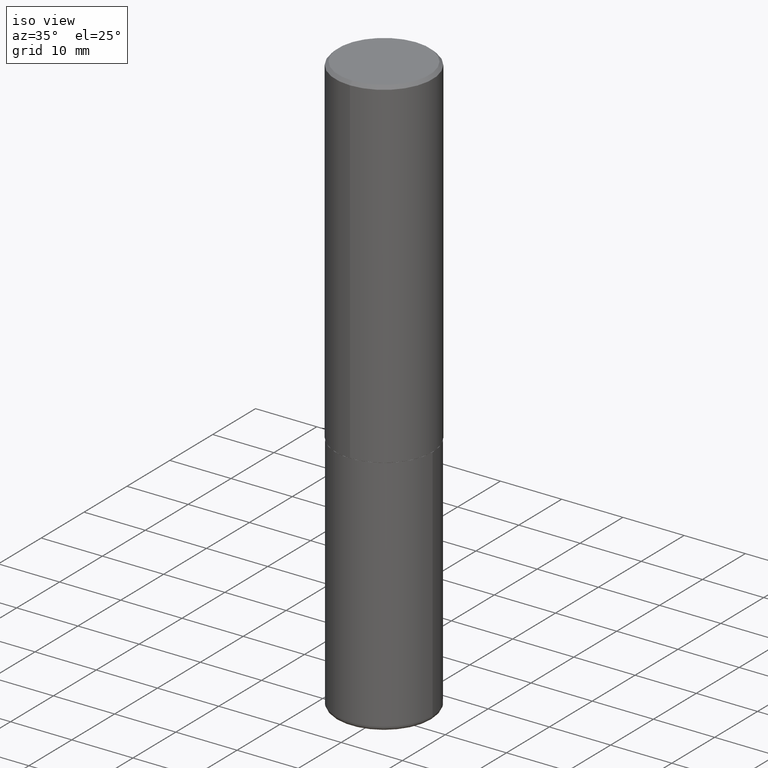
[diagram: clean part render]
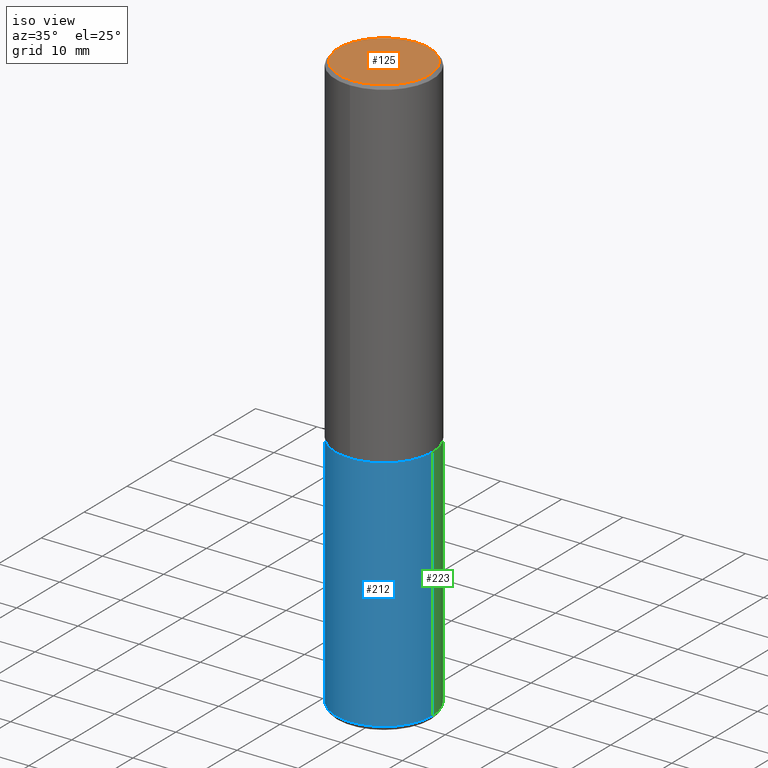
[diagram: same view with three faces highlighted in distinct colors, each labeled with its STEP entity id]
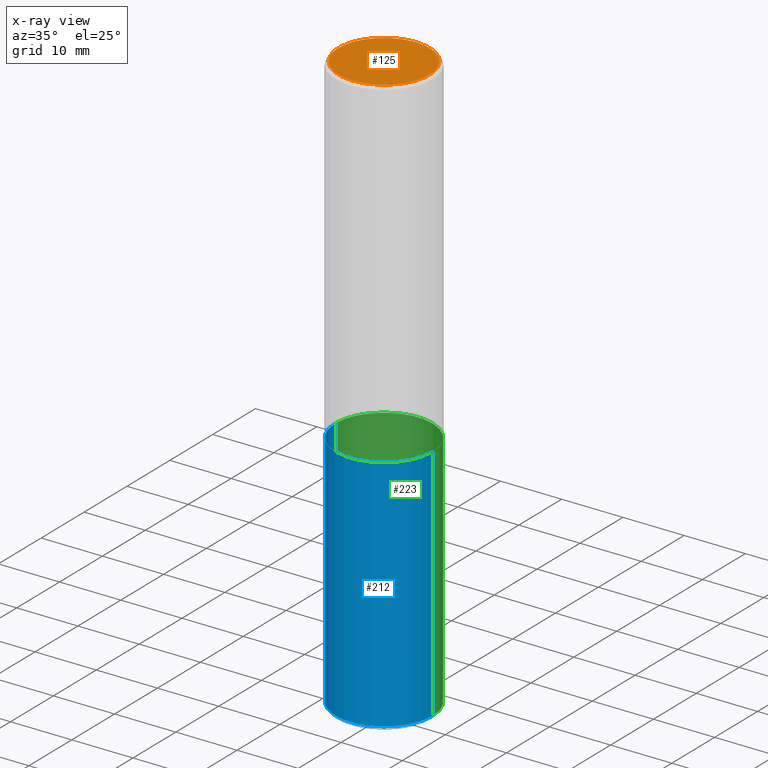
[diagram: x-ray of the same camera — body ghosted, the three highlighted faces saturated]
A machine part, iso view with three faces highlighted in distinct colors.
The next image is the same camera in x-ray (body ghosted, the three faces saturated) — at least one of them is partly hidden behind the body in this view.
Their STEP definitions:

[orange] entity #125 — the highlighted planar face has unit normal (0, -0, -1).
#1 = EDGE_LOOP ( 'NONE', ( #92, #311 ) ) ;
#21 = AXIS2_PLACEMENT_3D ( 'NONE', #122, #156, #386 ) ;
#32 = VERTEX_POINT ( 'NONE', #341 ) ;
#75 = CARTESIAN_POINT ( 'NONE',  ( 2.112346210000096232E-15, 0.2925000000000002043, -1.221878378646340071E-15 ) ) ;
#92 = ORIENTED_EDGE ( 'NONE', *, *, #218, .T. ) ;
#122 = CARTESIAN_POINT ( 'NONE',  ( 4.913580105495284132E-45, -7.011783785014308296E-31, -2.008757584503554466E-16 ) ) ;
#125 = ADVANCED_FACE ( 'NONE', ( #132 ), #257, .F. ) ;
#132 = FACE_OUTER_BOUND ( 'NONE', #1, .T. ) ;
#156 = DIRECTION ( 'NONE',  ( -2.446079180186209356E-29, 3.490607248533278647E-15, 1.000000000000000000 ) ) ;
#180 = EDGE_CURVE ( 'NONE', #32, #188, #414, .T. ) ;
#186 = CARTESIAN_POINT ( 'NONE',  ( 2.042516583223234117E-15, 0.2925000000000002043, -1.121440499421162508E-15 ) ) ;
#188 = VERTEX_POINT ( 'NONE', #75 ) ;
#217 = DIRECTION ( 'NONE',  ( 6.982962677686265922E-15, 1.000000000000000000, -3.490607248533278647E-15 ) ) ;
#218 = EDGE_CURVE ( 'NONE', #188, #32, #271, .T. ) ;
#222 = DIRECTION ( 'NONE',  ( -6.982962677686265922E-15, -1.000000000000000000, 3.490607248533278253E-15 ) ) ;
#237 = AXIS2_PLACEMENT_3D ( 'NONE', #372, #328, #222 ) ;
#257 = PLANE ( 'NONE',  #393 ) ;
#271 = CIRCLE ( 'NONE', #21, 0.2925000000000002043 ) ;
#311 = ORIENTED_EDGE ( 'NONE', *, *, #180, .T. ) ;
#328 = DIRECTION ( 'NONE',  ( -2.446079180186209356E-29, 3.490607248533278647E-15, 1.000000000000000000 ) ) ;
#341 = CARTESIAN_POINT ( 'NONE',  ( -2.075300644325888676E-15, -0.2925000000000002043, 8.201268617456294244E-16 ) ) ;
#372 = CARTESIAN_POINT ( 'NONE',  ( 4.913580105495284132E-45, -7.011783785014308296E-31, -2.008757584503554466E-16 ) ) ;
#386 = DIRECTION ( 'NONE',  ( -6.982962677686265922E-15, -1.000000000000000000, 3.490607248533278253E-15 ) ) ;
#393 = AXIS2_PLACEMENT_3D ( 'NONE', #186, #394, #217 ) ;
#394 = DIRECTION ( 'NONE',  ( 2.446079180186209075E-29, -3.490607248533278647E-15, -1.000000000000000000 ) ) ;
#414 = CIRCLE ( 'NONE', #237, 0.2925000000000002043 ) ;

[blue] entity #212 — the highlighted cylindrical surface (partial cylindrical patch) has radius 7.9375 mm, axis along (-0, 0, 1).
#13 = CARTESIAN_POINT ( 'NONE',  ( -0.3125000000000000000, -8.092516955357627487E-15, -2.187500000000000000 ) ) ;
#26 = CARTESIAN_POINT ( 'NONE',  ( -0.3125000000000000000, 2.220446049250313081E-15, -1.537167215704658232E-29 ) ) ;
#31 = EDGE_CURVE ( 'NONE', #272, #213, #310, .T. ) ;
#49 = CARTESIAN_POINT ( 'NONE',  ( 0.000000000000000000, 0.000000000000000000, 0.000000000000000000 ) ) ;
#56 = CARTESIAN_POINT ( 'NONE',  ( 0.3125000000000001665, -1.517048641727346397E-14, -3.720000000000000195 ) ) ;
#70 = DIRECTION ( 'NONE',  ( -2.445468806185136597E-29, 3.491481338843145583E-15, 1.000000000000000000 ) ) ;
#89 = VECTOR ( 'NONE', #273, 39.37007874015748143 ) ;
#118 = AXIS2_PLACEMENT_3D ( 'NONE', #290, #244, #381 ) ;
#126 = CIRCLE ( 'NONE', #202, 0.3125000000000000000 ) ;
#127 = EDGE_LOOP ( 'NONE', ( #299, #176, #283, #285 ) ) ;
#128 = EDGE_CURVE ( 'NONE', #272, #390, #126, .T. ) ;
#137 = CARTESIAN_POINT ( 'NONE',  ( 9.097143959008708723E-29, -1.298831058049650089E-14, -3.720000000000000195 ) ) ;
#161 = DIRECTION ( 'NONE',  ( 1.000000000000000000, -6.982962677686269077E-15, 0.000000000000000000 ) ) ;
#164 = DIRECTION ( 'NONE',  ( 1.000000000000000000, -6.982962677686266711E-15, 4.876176775795936353E-29 ) ) ;
#176 = ORIENTED_EDGE ( 'NONE', *, *, #128, .T. ) ;
#202 = AXIS2_PLACEMENT_3D ( 'NONE', #137, #70, #161 ) ;
#206 = CARTESIAN_POINT ( 'NONE',  ( 0.3125000000000000000, -2.182175836776958347E-15, 1.523805242436230075E-29 ) ) ;
#212 = ADVANCED_FACE ( 'NONE', ( #301 ), #370, .T. ) ;
#213 = VERTEX_POINT ( 'NONE', #13 ) ;
#234 = DIRECTION ( 'NONE',  ( -2.445468806185136597E-29, 3.491481338843145583E-15, 1.000000000000000000 ) ) ;
#240 = EDGE_CURVE ( 'NONE', #213, #358, #320, .T. ) ;
#244 = DIRECTION ( 'NONE',  ( -2.445468806185136597E-29, 3.491481338843145583E-15, 1.000000000000000000 ) ) ;
#272 = VERTEX_POINT ( 'NONE', #340 ) ;
#273 = DIRECTION ( 'NONE',  ( -2.445468806185136877E-29, 3.491481338843145188E-15, 1.000000000000000000 ) ) ;
#283 = ORIENTED_EDGE ( 'NONE', *, *, #355, .T. ) ;
#285 = ORIENTED_EDGE ( 'NONE', *, *, #240, .F. ) ;
#290 = CARTESIAN_POINT ( 'NONE',  ( 5.349463013529986305E-29, -7.637615428719381825E-15, -2.187500000000000000 ) ) ;
#299 = ORIENTED_EDGE ( 'NONE', *, *, #31, .F. ) ;
#301 = FACE_OUTER_BOUND ( 'NONE', #127, .T. ) ;
#303 = LINE ( 'NONE', #206, #89 ) ;
#306 = AXIS2_PLACEMENT_3D ( 'NONE', #49, #234, #164 ) ;
#310 = LINE ( 'NONE', #26, #334 ) ;
#320 = CIRCLE ( 'NONE', #118, 0.3125000000000000000 ) ;
#334 = VECTOR ( 'NONE', #380, 39.37007874015748143 ) ;
#339 = CARTESIAN_POINT ( 'NONE',  ( 0.3125000000000000000, -9.819791265496340172E-15, -2.187500000000000000 ) ) ;
#340 = CARTESIAN_POINT ( 'NONE',  ( -0.3125000000000001665, -1.076786453124618781E-14, -3.720000000000000195 ) ) ;
#355 = EDGE_CURVE ( 'NONE', #390, #358, #303, .T. ) ;
#358 = VERTEX_POINT ( 'NONE', #339 ) ;
#370 = CYLINDRICAL_SURFACE ( 'NONE', #306, 0.3125000000000000000 ) ;
#380 = DIRECTION ( 'NONE',  ( -2.445468806185136877E-29, 3.491481338843145188E-15, 1.000000000000000000 ) ) ;
#381 = DIRECTION ( 'NONE',  ( 1.000000000000000000, -6.982962677686269077E-15, 0.000000000000000000 ) ) ;
#390 = VERTEX_POINT ( 'NONE', #56 ) ;

[green] entity #223 — the highlighted cylindrical surface (partial cylindrical patch) has radius 7.9375 mm, axis along (-0, 0, 1).
#5 = ORIENTED_EDGE ( 'NONE', *, *, #355, .F. ) ;
#13 = CARTESIAN_POINT ( 'NONE',  ( -0.3125000000000000000, -8.092516955357627487E-15, -2.187500000000000000 ) ) ;
#19 = AXIS2_PLACEMENT_3D ( 'NONE', #110, #68, #363 ) ;
#25 = EDGE_CURVE ( 'NONE', #390, #272, #319, .T. ) ;
#26 = CARTESIAN_POINT ( 'NONE',  ( -0.3125000000000000000, 2.220446049250313081E-15, -1.537167215704658232E-29 ) ) ;
#31 = EDGE_CURVE ( 'NONE', #272, #213, #310, .T. ) ;
#35 = CIRCLE ( 'NONE', #280, 0.3125000000000000000 ) ;
#54 = DIRECTION ( 'NONE',  ( -2.445468806185136597E-29, 3.491481338843145583E-15, 1.000000000000000000 ) ) ;
#56 = CARTESIAN_POINT ( 'NONE',  ( 0.3125000000000001665, -1.517048641727346397E-14, -3.720000000000000195 ) ) ;
#64 = EDGE_LOOP ( 'NONE', ( #254, #332, #367, #5 ) ) ;
#68 = DIRECTION ( 'NONE',  ( -2.445468806185136597E-29, 3.491481338843145583E-15, 1.000000000000000000 ) ) ;
#89 = VECTOR ( 'NONE', #273, 39.37007874015748143 ) ;
#110 = CARTESIAN_POINT ( 'NONE',  ( 0.000000000000000000, 0.000000000000000000, 0.000000000000000000 ) ) ;
#114 = CARTESIAN_POINT ( 'NONE',  ( 5.349463013529986305E-29, -7.637615428719381825E-15, -2.187500000000000000 ) ) ;
#198 = DIRECTION ( 'NONE',  ( 1.000000000000000000, -6.982962677686269077E-15, 0.000000000000000000 ) ) ;
#206 = CARTESIAN_POINT ( 'NONE',  ( 0.3125000000000000000, -2.182175836776958347E-15, 1.523805242436230075E-29 ) ) ;
#213 = VERTEX_POINT ( 'NONE', #13 ) ;
#214 = CYLINDRICAL_SURFACE ( 'NONE', #19, 0.3125000000000000000 ) ;
#223 = ADVANCED_FACE ( 'NONE', ( #317 ), #214, .T. ) ;
#232 = DIRECTION ( 'NONE',  ( -2.445468806185136597E-29, 3.491481338843145583E-15, 1.000000000000000000 ) ) ;
#254 = ORIENTED_EDGE ( 'NONE', *, *, #25, .T. ) ;
#267 = DIRECTION ( 'NONE',  ( 1.000000000000000000, -6.982962677686269077E-15, 0.000000000000000000 ) ) ;
#272 = VERTEX_POINT ( 'NONE', #340 ) ;
#273 = DIRECTION ( 'NONE',  ( -2.445468806185136877E-29, 3.491481338843145188E-15, 1.000000000000000000 ) ) ;
#280 = AXIS2_PLACEMENT_3D ( 'NONE', #114, #232, #267 ) ;
#303 = LINE ( 'NONE', #206, #89 ) ;
#310 = LINE ( 'NONE', #26, #334 ) ;
#317 = FACE_OUTER_BOUND ( 'NONE', #64, .T. ) ;
#319 = CIRCLE ( 'NONE', #374, 0.3125000000000000000 ) ;
#332 = ORIENTED_EDGE ( 'NONE', *, *, #31, .T. ) ;
#334 = VECTOR ( 'NONE', #380, 39.37007874015748143 ) ;
#339 = CARTESIAN_POINT ( 'NONE',  ( 0.3125000000000000000, -9.819791265496340172E-15, -2.187500000000000000 ) ) ;
#340 = CARTESIAN_POINT ( 'NONE',  ( -0.3125000000000001665, -1.076786453124618781E-14, -3.720000000000000195 ) ) ;
#355 = EDGE_CURVE ( 'NONE', #390, #358, #303, .T. ) ;
#358 = VERTEX_POINT ( 'NONE', #339 ) ;
#359 = EDGE_CURVE ( 'NONE', #358, #213, #35, .T. ) ;
#363 = DIRECTION ( 'NONE',  ( 1.000000000000000000, -6.982962677686266711E-15, 4.876176775795936353E-29 ) ) ;
#367 = ORIENTED_EDGE ( 'NONE', *, *, #359, .F. ) ;
#374 = AXIS2_PLACEMENT_3D ( 'NONE', #377, #54, #198 ) ;
#377 = CARTESIAN_POINT ( 'NONE',  ( 9.097143959008708723E-29, -1.298831058049650089E-14, -3.720000000000000195 ) ) ;
#380 = DIRECTION ( 'NONE',  ( -2.445468806185136877E-29, 3.491481338843145188E-15, 1.000000000000000000 ) ) ;
#390 = VERTEX_POINT ( 'NONE', #56 ) ;